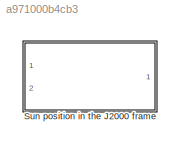
MODEL slx_a971000b4cb3
KIND library
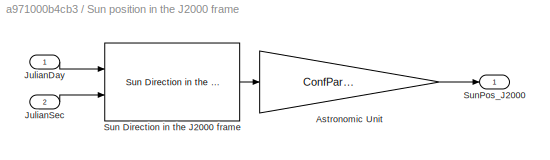
BLOCK [SubSystem] Sun position in the J2000 frame
  Ports = [2, 1]
  RequestExecContextInheritance = off
BLOCK [Gain] Sun position in the J2000 frame/Astronomic Unit
  Gain = ConfParam.confConst.AstrUnit
  OutDataTypeStr = Inherit: Inherit via internal rule
  ParamDataTypeStr = Inherit: Inherit via internal rule
  SaturateOnIntegerOverflow = off
BLOCK [Inport] Sun position in the J2000 frame/JulianDay
  IconDisplay = Port number
BLOCK [Inport] Sun position in the J2000 frame/JulianSec
  IconDisplay = Port number
  Port = 2
BLOCK [Reference] Sun position in the J2000 frame/Sun Direction in the J2000 frame  REF=SunDirection/Sun Direction in the J2000 frame
  Ports = [2, 1]
  SourceBlock = SunDirection/Sun Direction in the J2000 frame
  SourceType = SubSystem
BLOCK [Outport] Sun position in the J2000 frame/SunPos_J2000
  IconDisplay = Port number
LINE Sun position in the J2000 frame/Astronomic Unit:1 -> Sun position in the J2000 frame/SunPos_J2000:1
LINE Sun position in the J2000 frame/JulianDay:1 -> Sun position in the J2000 frame/Sun Direction in the J2000 frame:1
LINE Sun position in the J2000 frame/JulianSec:1 -> Sun position in the J2000 frame/Sun Direction in the J2000 frame:2
LINE Sun position in the J2000 frame/Sun Direction in the J2000 frame:1 -> Sun position in the J2000 frame/Astronomic Unit:1
